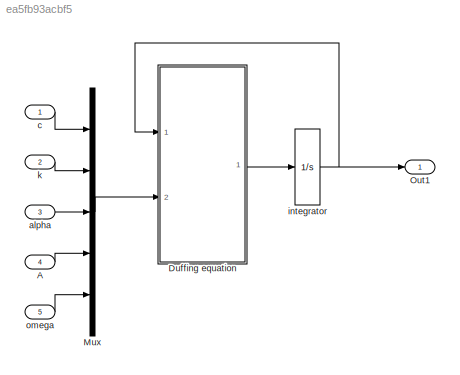
MODEL slx_ea5fb93acbf5
KIND model
CONFIG AbsTol = auto
CONFIG EnableMultiTasking = on
CONFIG FixedStep = auto
CONFIG MaxStep = 0.01
CONFIG MinStep = auto
CONFIG RelTol = 1e-3
CONFIG SampleTimeConstraint = Unconstrained
CONFIG Solver = ode45
CONFIG SolverName = ode45
CONFIG StartTime = 0.0
CONFIG StopTime = 20
BLOCK [Inport] A
  IconDisplay = Port number
  Port = 4
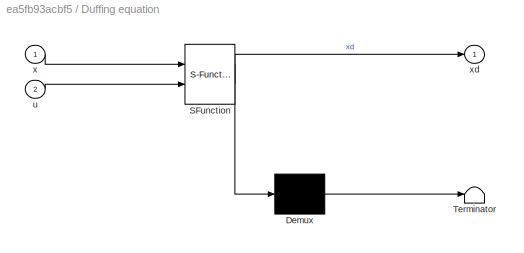
BLOCK [SubSystem] Duffing equation
  ErrorFcn = Stateflow.Translate.translate
  PermitHierarchicalResolution = ExplicitOnly
  Ports = [2, 1]
  RequestExecContextInheritance = off
  SFBlockType = MATLAB Function
  TreatAsAtomicUnit = on
BLOCK [Demux] Duffing equation/ Demux 
  Outputs = 1
  Ports = [1, 1]
BLOCK [S-Function] Duffing equation/ SFunction 
  EnableBusSupport = on
  FunctionName = sf_sfun
  PortCounts = [2 2]
  Ports = [2, 2]
  SFcnIsStateOwnerBlock = off
  SFunctionDeploymentMode = off
  Tag = Stateflow S-Function model 2
BLOCK [Terminator] Duffing equation/ Terminator 
BLOCK [Inport] Duffing equation/u
  IconDisplay = Port number
  Port = 2
BLOCK [Inport] Duffing equation/x
  IconDisplay = Port number
BLOCK [Outport] Duffing equation/xd
  IconDisplay = Port number
BLOCK [Mux] Mux
  DisplayOption = bar
  Inputs = 5
  Ports = [5, 1]
BLOCK [Outport] Out1
  IconDisplay = Port number
BLOCK [Inport] alpha
  IconDisplay = Port number
  Port = 3
BLOCK [Inport] c
  IconDisplay = Port number
BLOCK [Integrator] integrator
  InitialCondition = [0 0 0 1]
  Ports = [1, 1]
BLOCK [Inport] k
  IconDisplay = Port number
  Port = 2
BLOCK [Inport] omega
  IconDisplay = Port number
  Port = 5
LINE A:1 -> Mux:4
LINE Duffing equation:1 -> integrator:1
LINE Mux:1 -> Duffing equation:2
LINE alpha:1 -> Mux:3
LINE c:1 -> Mux:1
NET integrator:1 -> Duffing equation:1, Out1:1
LINE k:1 -> Mux:2
LINE omega:1 -> Mux:5
note: NET lines group one-source signal fan-out (src -> all destinations, sorted); 1:1 wires keep LINE
CHART Duffing equation states=1 transitions=1
  STATE_LABEL 'eML_blk_kernel()'
  STATE_LABEL 'SCRIPT:\nfunction xd = equations_of_motion(x,u)\n\nx1 = x(1); % x\nx2 = x(2); % x_dot\nx3 = x(3); x4 = x(4); % sin and cos terms for the harmonic oscillator\n\n% Harmonic oscillator equations\nx3dot =  x3+u(5)*x4-x3*(x3^2+x4^2); % [sin(omega*t)]dot\nx4dot = -u(5)*x3+x4-x4*(x3^2+x4^2); % [cos(omega*t)]dot\n\nc=u(1); k=u(2); alpha=u(3); A=u(4); omega=u(5);\n\n% Equation of motion - Duffing system:\n% xdotdot + c*...<+145ch>'
